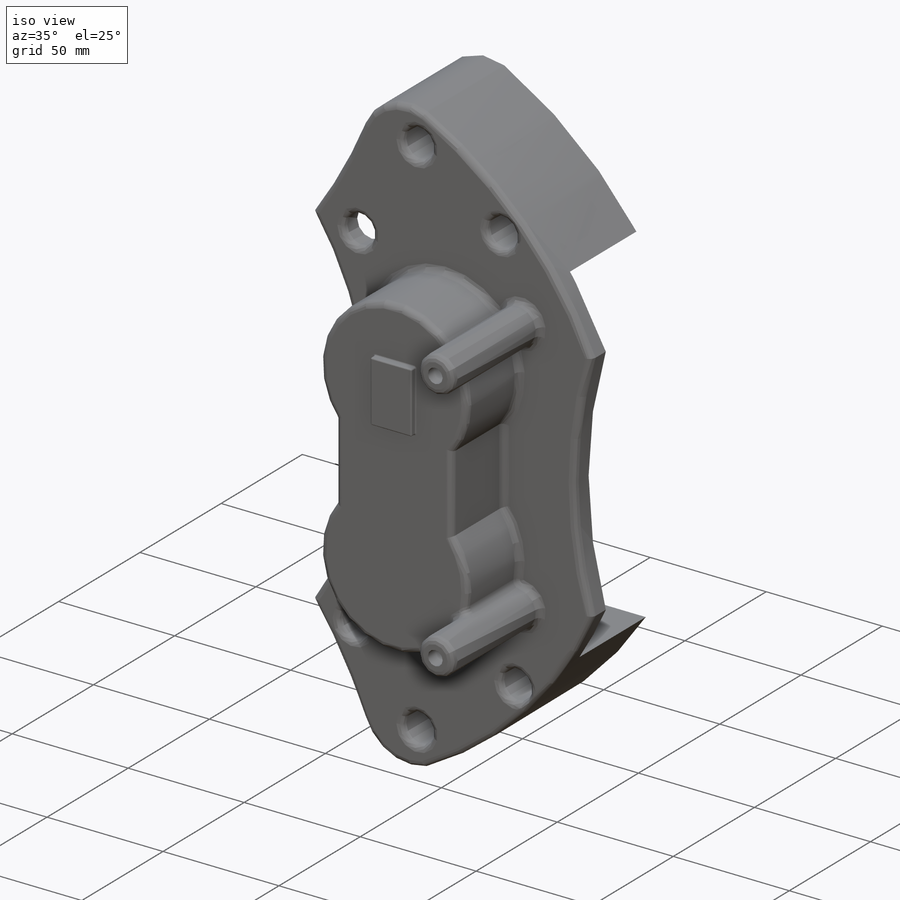
[diagram: iso view]
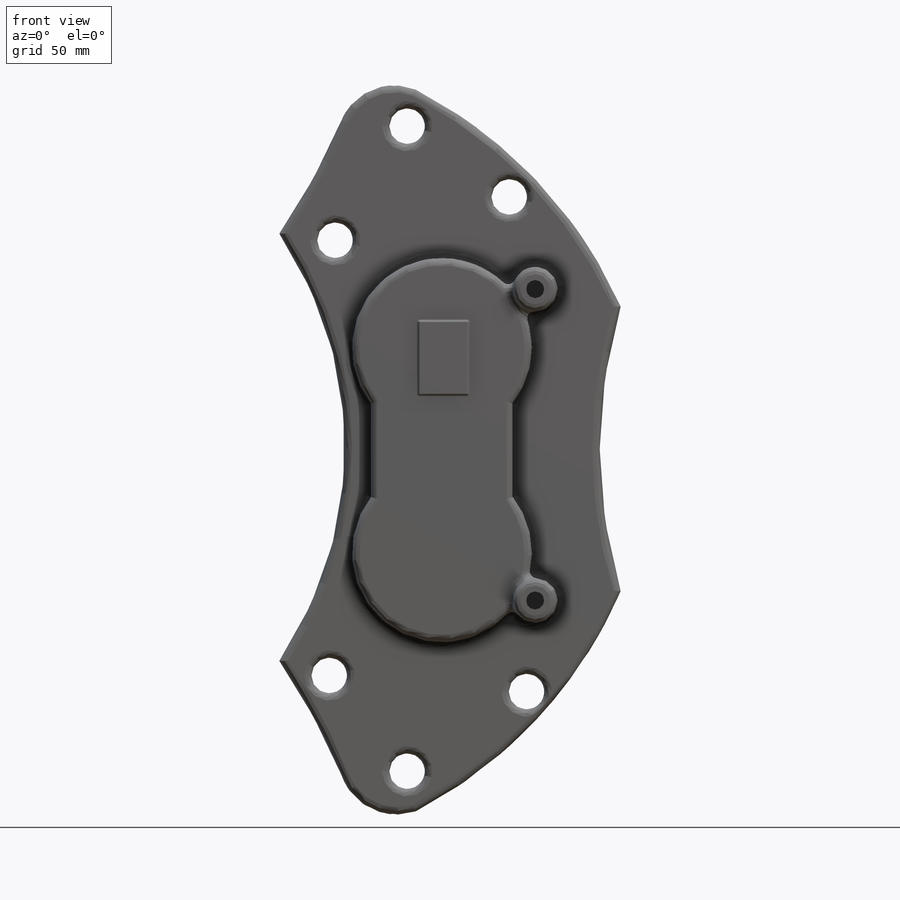
[diagram: front view]
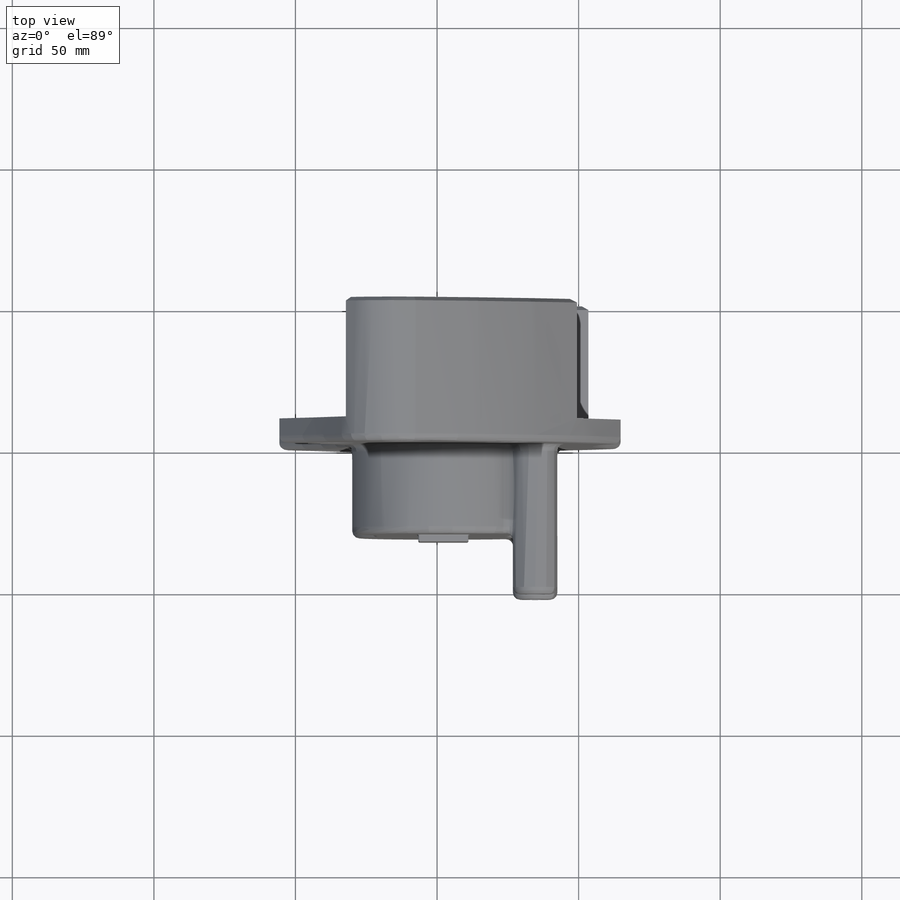
[diagram: top view]
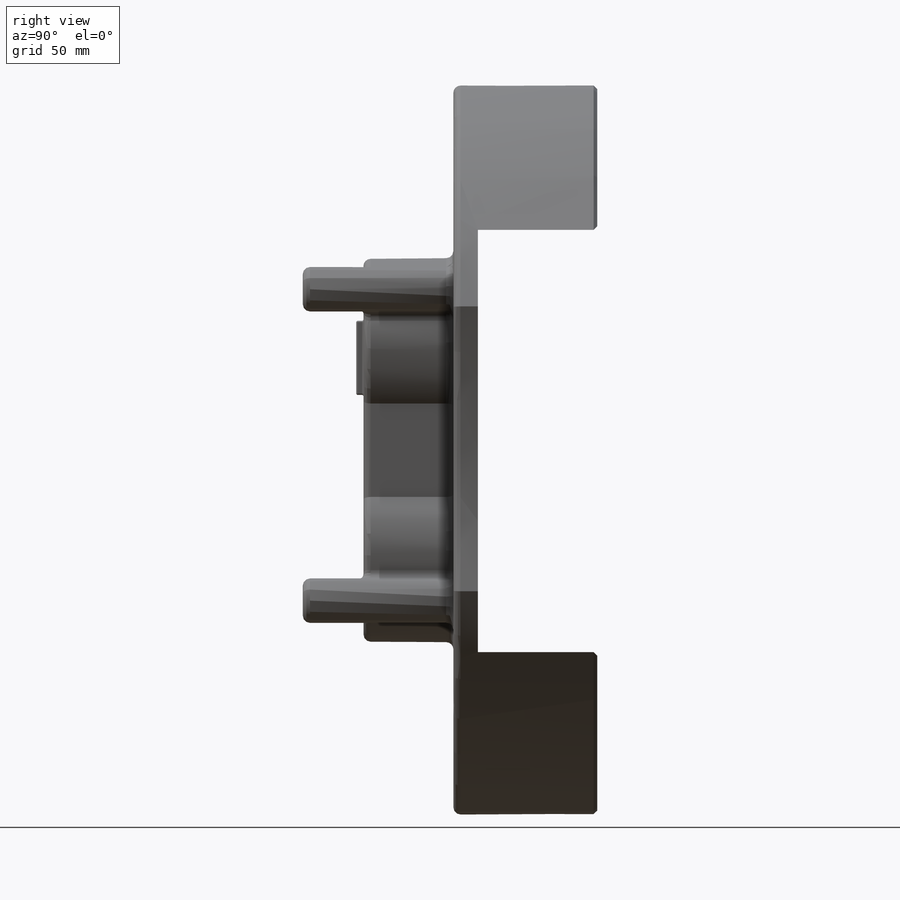
[diagram: right view]
SOLIDWORKS PART (.sldprt)
format: sldprt  version: not decoded by parser v0  size: 402,432 bytes
history: native  units: mm
features: sketch x11, cut_extrude x7, fillet x6, extrude x4, plane x2, material x1, chamfer x1 (+13 scaffold rows collapsed)
feature tree (45):
  scaffold x13  (default folders/planes/origin — collapsed)
  material  "Material <not specified>"
  sketch  "Sketch1"  dims[D1=63.5mm]
  extrude  "Extrude1"  Depth=31.75mm
  sketch  "Sketch5"
  extrude  "Extrude2"  Depth=50.8mm
  sketch  "Sketch3"  dims[D1=50.0mm]
  cut_extrude  "Cut-Extrude1"  Depth=25.4mm
  sketch  "Sketch7"  dims[c1.D1=12.7mm c1.D2=12.7mm c2.D1=~13.906952mm c2.D2=25.0mm c2.D3=25.0mm c3.D1=~12.799272mm c3.D3=~153.706634mm]
  cut_extrude  "Cut-Extrude2"  [1 undecoded]
  fillet  "Fillet1"  Radius=2.54mm
  fillet  "Fillet2"  Radius=2.54mm
  fillet  "Fillet3"  Radius=2.54mm
  sketch  "Sketch10"
  cut_extrude  "Cut-Extrude3"  [1 undecoded]
  plane  "Plane1"  Offset=10.16mm
  plane  "Plane2"  Offset=8.636mm
  sketch  "Sketch13"  dims[D1=274.32mm D2=139.7mm]
  cut_extrude  "Cut-Extrude4"  [1 undecoded]
  sketch  "Sketch14"
  cut_extrude  "Cut-Extrude5"  [1 undecoded]
  sketch  "Sketch15"
  extrude  "Extrude3"  Depth=53.18mm
  fillet  "Fillet4"  Radius=2.54mm
  sketch  "Sketch16"  dims[D1=~1.636236mm]
  cut_extrude  "Cut-Extrude6"  Depth=27.94mm
  fillet  "Fillet5"  Radius=2.54mm
  sketch  "Sketch17"
  extrude  "Extrude4"  Depth=2.54mm
  fillet  "Fillet6"  Radius=0.508mm
  sketch  "Sketch19"
  cut_extrude  "Cut-Extrude7"  [1 undecoded]
  chamfer  "Chamfer1"  Distance=1.27mm Angle=45deg
decode coverage: 18 of 29 modeling features carry decoded parameters
note: ~ marks probable driven/reference dimensions
note: 5 parameter values undecoded
summary: no parameter record found for 5 features
note: suppression state not decoded; provenance and decode notes live in map.json
